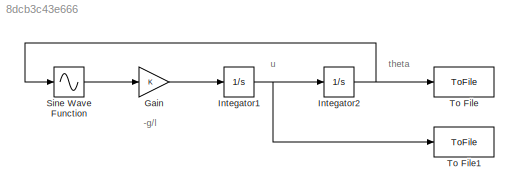
MODEL slx_8dcb3c43e666
KIND model
CONFIG AbsTol = auto
CONFIG EnableMultiTasking = on
CONFIG FixedStep = auto
CONFIG MaxStep = auto
CONFIG MinStep = auto
CONFIG RelTol = 1e-3
CONFIG SampleTimeConstraint = Unconstrained
CONFIG SolverName = ode45
CONFIG StartTime = 0.0
CONFIG StopTime = 100
BLOCK [Gain] Gain
BLOCK [Integrator] Integator1
  InitialCondition = 0.2
  Ports = [1, 1]
BLOCK [Integrator] Integator2
  Ports = [1, 1]
BLOCK [Sin] Sine Wave Function
  Ports = [1, 1]
  SampleTime = 0
  TimeSource = Use external signal
BLOCK [ToFile] To File
  Filename = theta.mat
  MatrixName = theta
  Ports = [1]
  SampleTime = 0.001
BLOCK [ToFile] To File1
  Filename = u.mat
  MatrixName = u
  Ports = [1]
  SampleTime = 0.001
ANNOTATION (root): -g/l
ANNOTATION (root): theta
ANNOTATION (root): u
LINE Gain:1 -> Integator1:1
NET Integator1:1 -> Integator2:1, To File1:1
NET Integator2:1 -> Sine Wave Function:1, To File:1
LINE Sine Wave Function:1 -> Gain:1
note: NET lines group one-source signal fan-out (src -> all destinations, sorted); 1:1 wires keep LINE
